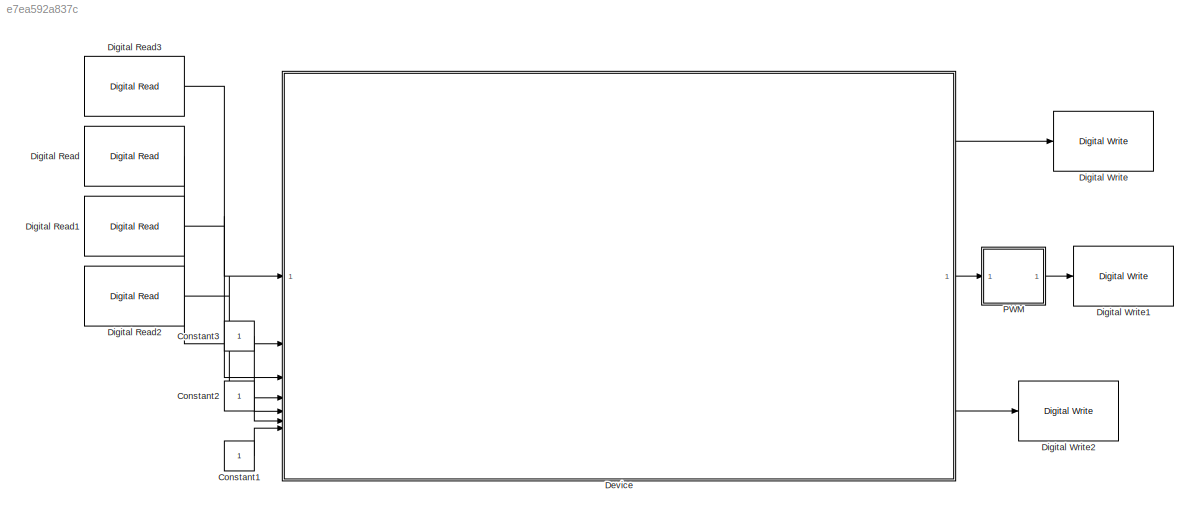
MODEL slx_e7ea592a837c
KIND model
CONFIG AbsTol = auto
CONFIG EnableMultiTasking = off
CONFIG FixedStep = 0.01
CONFIG MaxStep = auto
CONFIG MinStep = auto
CONFIG RelTol = 1e-3
CONFIG SampleTimeConstraint = Unconstrained
CONFIG SolverName = FixedStepAuto
CONFIG StartTime = 0.0
CONFIG StopTime = 50
BLOCK [Constant] Constant1
BLOCK [Constant] Constant2
BLOCK [Constant] Constant3
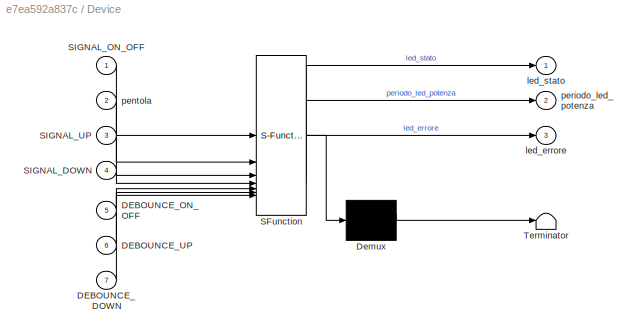
BLOCK [SubSystem] Device
  ErrorFcn = Stateflow.Translate.translate
  PermitHierarchicalResolution = ExplicitOnly
  SFBlockType = Chart
  TreatAsAtomicUnit = on
BLOCK [Demux] Device/ Demux 
  Outputs = 1
BLOCK [S-Function] Device/ SFunction 
  EnableBusSupport = off
  FunctionName = sf_sfun
  PortCounts = [7 4]
  SFcnIsStateOwnerBlock = off
  SFunctionDeploymentMode = off
  Tag = Stateflow S-Function 2
BLOCK [Terminator] Device/ Terminator 
BLOCK [Inport] Device/DEBOUNCE_DOWN
  Port = 7
BLOCK [Inport] Device/DEBOUNCE_ON_OFF
  Port = 5
BLOCK [Inport] Device/DEBOUNCE_UP
  Port = 6
BLOCK [Inport] Device/SIGNAL_DOWN
  Port = 4
BLOCK [Inport] Device/SIGNAL_ON_OFF
BLOCK [Inport] Device/SIGNAL_UP
  Port = 3
BLOCK [Outport] Device/led_errore
  Port = 3
BLOCK [Outport] Device/led_stato
BLOCK [Inport] Device/pentola
  Port = 2
BLOCK [Outport] Device/periodo_led_potenza
  Port = 2
BLOCK [Reference] Digital Read  REF=mbedblockslib/Digital Read
  LibrarySourceBlock = stmnucleorootlib/Common/Digital Read
  SourceBlock = mbedblockslib/Digital Read
  SourceType = mbed.DigitalRead
BLOCK [Reference] Digital Read1  REF=mbedblockslib/Digital Read
  LibrarySourceBlock = stmnucleorootlib/Common/Digital Read
  SourceBlock = mbedblockslib/Digital Read
  SourceType = mbed.DigitalRead
BLOCK [Reference] Digital Read2  REF=mbedblockslib/Digital Read
  LibrarySourceBlock = stmnucleorootlib/Common/Digital Read
  SourceBlock = mbedblockslib/Digital Read
  SourceType = mbed.DigitalRead
BLOCK [Reference] Digital Read3  REF=mbedblockslib/Digital Read
  LibrarySourceBlock = stmnucleorootlib/Common/Digital Read
  SourceBlock = mbedblockslib/Digital Read
  SourceType = mbed.DigitalRead
BLOCK [Reference] Digital Write  REF=mbedblockslib/Digital Write
  LibrarySourceBlock = stmnucleorootlib/Common/Digital Write
  SourceBlock = mbedblockslib/Digital Write
  SourceType = mbed.DigitalWrite
BLOCK [Reference] Digital Write1  REF=mbedblockslib/Digital Write
  LibrarySourceBlock = stmnucleorootlib/Common/Digital Write
  SourceBlock = mbedblockslib/Digital Write
  SourceType = mbed.DigitalWrite
BLOCK [Reference] Digital Write2  REF=mbedblockslib/Digital Write
  LibrarySourceBlock = stmnucleorootlib/Common/Digital Write
  SourceBlock = mbedblockslib/Digital Write
  SourceType = mbed.DigitalWrite
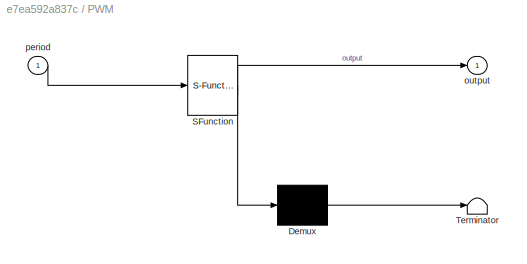
BLOCK [SubSystem] PWM
  ErrorFcn = Stateflow.Translate.translate
  PermitHierarchicalResolution = ExplicitOnly
  SFBlockType = Chart
  TreatAsAtomicUnit = on
BLOCK [Demux] PWM/ Demux 
  Outputs = 1
BLOCK [S-Function] PWM/ SFunction 
  EnableBusSupport = off
  FunctionName = sf_sfun
  PortCounts = [1 2]
  SFcnIsStateOwnerBlock = off
  SFunctionDeploymentMode = off
  Tag = Stateflow S-Function 5
BLOCK [Terminator] PWM/ Terminator 
BLOCK [Outport] PWM/output
BLOCK [Inport] PWM/period
LINE Constant1:1 -> Device:7
LINE Constant2:1 -> Device:6
LINE Constant3:1 -> Device:5
LINE Device:1 -> Digital Write:1
LINE Device:2 -> PWM:1
LINE Device:3 -> Digital Write2:1
LINE Digital Read1:1 -> Device:3
LINE Digital Read2:1 -> Device:4
LINE Digital Read3:1 -> Device:1
LINE Digital Read:1 -> Device:2
LINE PWM:1 -> Digital Write1:1
CHART Test Assessment Block states=3 transitions=10
  STATE_LABEL 'Run\n\n'
  STATE_LABEL 'step_1_1'
  STATE_LABEL 'step_1_2'
  STATE_LABEL '[t < 5\n]'
  STATE_LABEL '[~in(Run.step_1_1)]'
  STATE_LABEL '[~in(Run.step_1_2)]'
  STATE_LABEL 'step_1_1'
  STATE_LABEL 'step_1_2'
CHART Test Sequence states=3 transitions=1
  STATE_LABEL 'Init\n%% Initialize data outputs.\nSIGNAL_ON_OFF = 1;\npentola = false;\nSIGNAL_UP = 1;\nSIGNAL_DOWN = 1;\nDEBOUNCE_ON_OFF = 1;\nDEBOUNCE_UP = 1;\nDEBOUNCE_DOWN = 1;'
  STATE_LABEL 'Accensione_step_1\n%%\nSIGNAL_ON_OFF = 1;\npentola = false;\nSIGNAL_UP = 1;\nSIGNAL_DOWN = 1;\nDEBOUNCE_ON_OFF = 1;\nDEBOUNCE_UP = 1;\nDEBOUNCE_DOWN = 1;'
  STATE_LABEL 'Accensione_step_2\n%%\nSIGNAL_ON_OFF = 1;\npentola = false;\nSIGNAL_UP = 1;\nSIGNAL_DOWN = 1;\nDEBOUNCE_ON_OFF = 1;\nDEBOUNCE_UP = 1;\nDEBOUNCE_DOWN = 1;'
CHART Device states=34 transitions=69
  STATE_LABEL 'DEVICE'
  STATE_LABEL 'FORNELLO'
  STATE_LABEL 'ON\nen: led_stato = true'
  STATE_LABEL 'SELECTOR'
  STATE_LABEL 'SELECTED_0W\nen: selected_power=0;\n'
  STATE_LABEL 'SELECTED_300W\nen: selected_power=300;\n'
  STATE_LABEL 'SELECTED_500W\nen: selected_power=500\n'
  STATE_LABEL 'SELECTED_1000W\nen: selected_power=1000'
  STATE_LABEL 'SELECTED_1500W\nen: selected_power=1500'
  STATE_LABEL 'disattiva'
  STATE_LABEL 'disattiva'
  STATE_LABEL 'disattiva'
  STATE_LABEL 'disattiva'
  STATE_LABEL 'LONG_PRESS_UP[pentola == false]'
  STATE_LABEL 'LONG_PRESS_DOWN[pentola==false]'
  STATE_LABEL 'LONG_PRESS_DOWN[pentola==false]'
  STATE_LABEL 'LONG_PRESS_UP[pentola == false]'
  STATE_LABEL 'LONG_PRESS_DOWN[pentola==false]'
  STATE_LABEL 'LONG_PRESS_UP[pentola == false]'
  STATE_LABEL 'LONG_PRESS_DOWN[pentola == false]'
  STATE_LABEL 'LONG_PRESS_UP[pentola==false]'
  STATE_LABEL 'WATCHDOG'
  STATE_LABEL 'IDLE'
  STATE_LABEL 'ERROR\nen: led_errore = true\non after(10,sec): send(disattiva,SELECTOR); erogaPotenza(0)\nex: led_errore = false'
  STATE_LABEL '[pentola == true && attivo==true]'
  STATE_LABEL '[pentola == false || attivo == false]'
  STATE_LABEL 'SUPPLIER'
  STATE_LABEL 'NO_CHANGE_REQUESTED'
  STATE_LABEL 'Applying_0_power\nen: erogaPotenza(selected_power)'
  STATE_LABEL 'Applying_power\nen: erogaPotenza(selected_power)'
  STATE_LABEL 'PENDING_CHANGE\nen: t_debug = 0'
  STATE_LABEL 'change_power'
  STATE_LABEL '[attivo == false]'
  STATE_LABEL '[pentola==false]'
  STATE_LABEL 'DELAYED_TRIGGER'
  STATE_LABEL 'IDLE'
  STATE_LABEL 'DELAYING'
  STATE_LABEL 'change(selected_power)'
  STATE_LABEL 'after(5,sec)/{send(change_power, SUPPLIER)}'
  STATE_LABEL 'change(selected_power)'
CHART PWM states=2 transitions=3
  STATE_LABEL 'Off\nen: output = false'
  STATE_LABEL 'On\nen: output = true'
CHART  states=0 transitions=0
CHART  states=0 transitions=0
